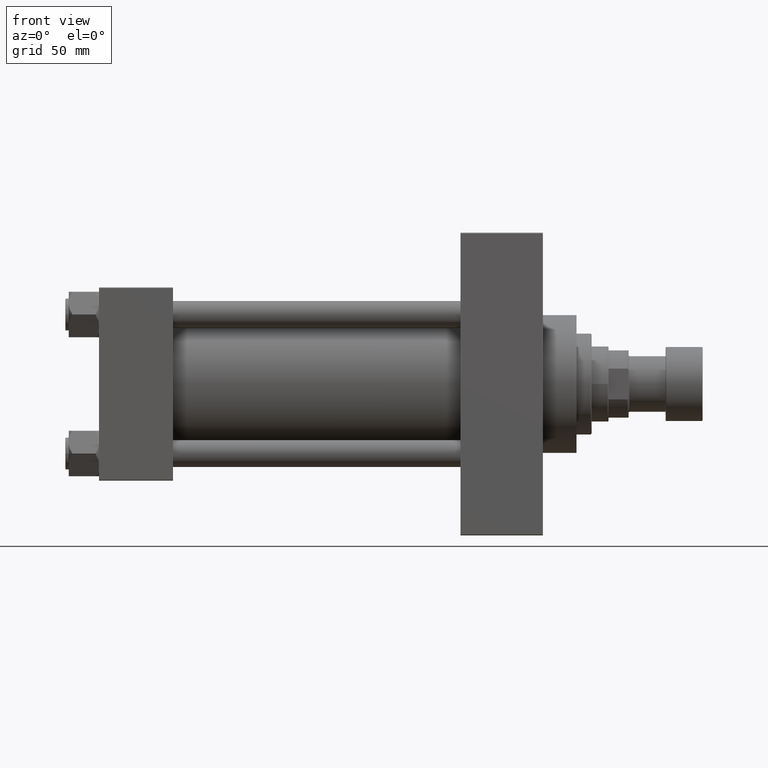
[diagram: clean part render]
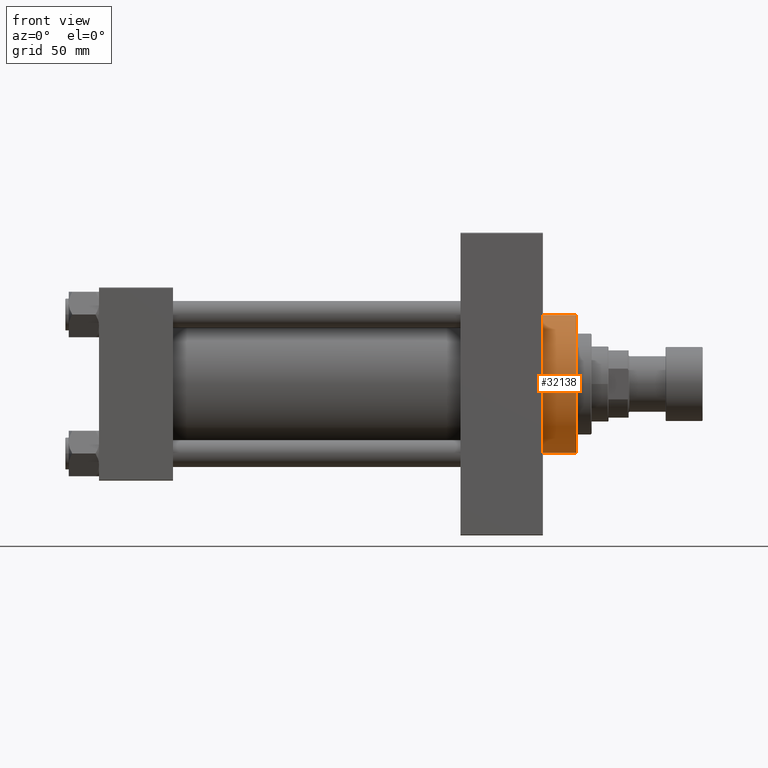
[diagram: same view with one face highlighted and labeled with its STEP entity id]
A machine part, front view. The second image highlights one B-rep face of the part: STEP entity #32138.
In plain terms, the highlighted cylindrical surface (partial cylindrical patch) has radius 41 mm, axis along (-1, -0, -0).
Its self-contained STEP definition (entity closure, byte-faithful):
#1521 = DIRECTION ( 'NONE',  ( -1.000000000000000000, -0.000000000000000000, -0.000000000000000000 ) ) ;
#1787 = AXIS2_PLACEMENT_3D ( 'NONE', #48112, #40040, #14156 ) ;
#3406 = ORIENTED_EDGE ( 'NONE', *, *, #41950, .F. ) ;
#3411 = CARTESIAN_POINT ( 'NONE',  ( 284.0000000000000568, 0.000000000000000000, 0.000000000000000000 ) ) ;
#8601 = CARTESIAN_POINT ( 'NONE',  ( 284.0000000000000568, 0.000000000000000000, 41.00000000000000000 ) ) ;
#9264 = VERTEX_POINT ( 'NONE', #23753 ) ;
#10961 = DIRECTION ( 'NONE',  ( -1.000000000000000000, -0.000000000000000000, -0.000000000000000000 ) ) ;
#11863 = ORIENTED_EDGE ( 'NONE', *, *, #32182, .T. ) ;
#12031 = CYLINDRICAL_SURFACE ( 'NONE', #48163, 41.00000000000000000 ) ;
#12098 = VERTEX_POINT ( 'NONE', #45288 ) ;
#13287 = EDGE_CURVE ( 'NONE', #46529, #9264, #47050, .T. ) ;
#14156 = DIRECTION ( 'NONE',  ( 0.000000000000000000, 0.000000000000000000, -1.000000000000000000 ) ) ;
#18022 = VERTEX_POINT ( 'NONE', #22370 ) ;
#18678 = CIRCLE ( 'NONE', #22607, 41.00000000000000000 ) ;
#18782 = EDGE_CURVE ( 'NONE', #18022, #9264, #25147, .T. ) ;
#19823 = VECTOR ( 'NONE', #10961, 1000.000000000000000 ) ;
#21475 = CARTESIAN_POINT ( 'NONE',  ( 284.0000000000000568, 5.021051876504148963E-15, -41.00000000000000000 ) ) ;
#22370 = CARTESIAN_POINT ( 'NONE',  ( 284.0000000000000568, 5.021051876504148963E-15, -41.00000000000000000 ) ) ;
#22607 = AXIS2_PLACEMENT_3D ( 'NONE', #3411, #32988, #33227 ) ;
#23038 = FACE_OUTER_BOUND ( 'NONE', #38155, .T. ) ;
#23523 = DIRECTION ( 'NONE',  ( -1.000000000000000000, -0.000000000000000000, -0.000000000000000000 ) ) ;
#23753 = CARTESIAN_POINT ( 'NONE',  ( 264.0000000000000000, 5.021051876504148963E-15, -41.00000000000000000 ) ) ;
#25147 = LINE ( 'NONE', #21475, #19823 ) ;
#26942 = CARTESIAN_POINT ( 'NONE',  ( 284.0000000000000568, 0.000000000000000000, 0.000000000000000000 ) ) ;
#28879 = ORIENTED_EDGE ( 'NONE', *, *, #13287, .T. ) ;
#32138 = ADVANCED_FACE ( 'NONE', ( #23038 ), #12031, .T. ) ;
#32182 = EDGE_CURVE ( 'NONE', #12098, #46529, #42059, .T. ) ;
#32988 = DIRECTION ( 'NONE',  ( 1.000000000000000000, 0.000000000000000000, 0.000000000000000000 ) ) ;
#33227 = DIRECTION ( 'NONE',  ( 0.000000000000000000, 0.000000000000000000, -1.000000000000000000 ) ) ;
#34431 = ORIENTED_EDGE ( 'NONE', *, *, #18782, .F. ) ;
#35674 = VECTOR ( 'NONE', #23523, 1000.000000000000000 ) ;
#38155 = EDGE_LOOP ( 'NONE', ( #34431, #3406, #11863, #28879 ) ) ;
#40040 = DIRECTION ( 'NONE',  ( 1.000000000000000000, 0.000000000000000000, 0.000000000000000000 ) ) ;
#41334 = DIRECTION ( 'NONE',  ( 0.000000000000000000, 0.000000000000000000, 1.000000000000000000 ) ) ;
#41950 = EDGE_CURVE ( 'NONE', #12098, #18022, #18678, .T. ) ;
#42059 = LINE ( 'NONE', #8601, #35674 ) ;
#45288 = CARTESIAN_POINT ( 'NONE',  ( 284.0000000000000568, 0.000000000000000000, 41.00000000000000000 ) ) ;
#46529 = VERTEX_POINT ( 'NONE', #47096 ) ;
#47050 = CIRCLE ( 'NONE', #1787, 41.00000000000000000 ) ;
#47096 = CARTESIAN_POINT ( 'NONE',  ( 264.0000000000000000, 0.000000000000000000, 41.00000000000000000 ) ) ;
#48112 = CARTESIAN_POINT ( 'NONE',  ( 264.0000000000000000, 0.000000000000000000, 0.000000000000000000 ) ) ;
#48163 = AXIS2_PLACEMENT_3D ( 'NONE', #26942, #1521, #41334 ) ;